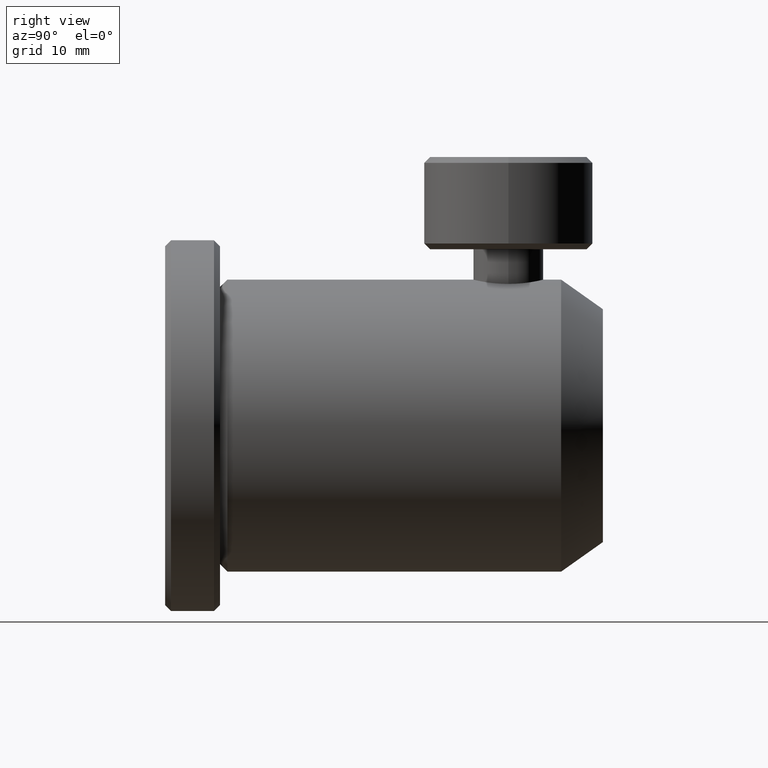
[diagram: clean part render]
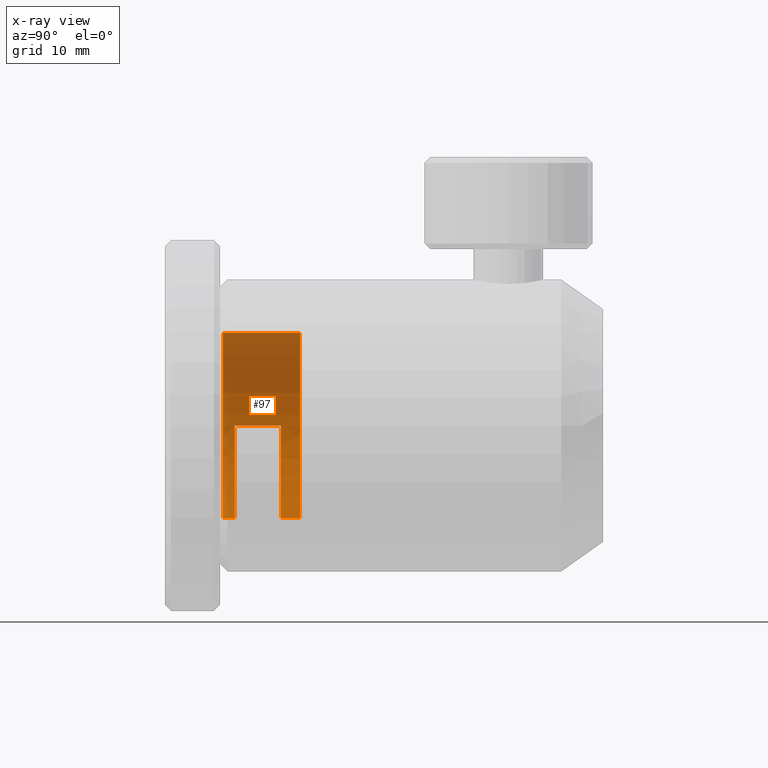
[diagram: x-ray — body ghosted, one internal face saturated and labeled with its STEP entity id]
A machine part, right view, then the same camera in x-ray: the body is ghosted and one INTERNAL B-rep face — a face not visible from any outside direction — is saturated and labeled: STEP entity #97.
In plain terms, the highlighted cylindrical surface (partial cylindrical patch) has radius 7.9375 mm, axis along (-0, 1, -0).
Its self-contained STEP definition (entity closure, byte-faithful):
#1 = CARTESIAN_POINT ( 'NONE',  ( -17.81591825903160100, -13.57886015381163600, 3.908492188329974600 ) ) ;
#21 = AXIS2_PLACEMENT_3D ( 'NONE', #3245, #3000, #464 ) ;
#97 = ADVANCED_FACE ( 'NONE', ( #587 ), #497, .F. ) ;
#137 = ORIENTED_EDGE ( 'NONE', *, *, #2981, .F. ) ;
#194 = VECTOR ( 'NONE', #2451, 1000.000000000000000 ) ;
#238 = CARTESIAN_POINT ( 'NONE',  ( -24.71440178323126700, -13.57883632940748700, 10.80696398883896100 ) ) ;
#244 = EDGE_CURVE ( 'NONE', #606, #2000, #2009, .T. ) ;
#246 = CARTESIAN_POINT ( 'NONE',  ( -23.57251977138291100, -9.641813358169830700, 7.702046776336532100 ) ) ;
#281 = CARTESIAN_POINT ( 'NONE',  ( -16.77690416192938400, -7.990831564526651200, 3.908500000000066300 ) ) ;
#285 = CARTESIAN_POINT ( 'NONE',  ( -18.36051706045270000, -9.641795917809309600, 4.016546295019217900 ) ) ;
#356 = ORIENTED_EDGE ( 'NONE', *, *, #2775, .F. ) ;
#367 = DIRECTION ( 'NONE',  ( -0.0000000000000000000, 1.000000000000000000, -0.0000000000000000000 ) ) ;
#464 = DIRECTION ( 'NONE',  ( 0.0000000000000000000, 0.0000000000000000000, 1.000000000000000000 ) ) ;
#483 = DIRECTION ( 'NONE',  ( 0.0000000000000000000, 0.0000000000000000000, 1.000000000000000000 ) ) ;
#494 = CARTESIAN_POINT ( 'NONE',  ( -24.50780756226441400, -13.57884049867822000, 9.768356392796640400 ) ) ;
#497 = CYLINDRICAL_SURFACE ( 'NONE', #3060, 7.937499999999932500 ) ;
#527 = CARTESIAN_POINT ( 'NONE',  ( -20.94571358167017300, -9.641801223342280700, 5.011930882989041400 ) ) ;
#538 = CARTESIAN_POINT ( 'NONE',  ( -16.77690465237445100, -9.641799069448357100, 3.908500000000082200 ) ) ;
#587 = FACE_OUTER_BOUND ( 'NONE', #706, .T. ) ;
#590 = B_SPLINE_CURVE_WITH_KNOTS ( 'NONE', 3,
 ( #538, #3057, #285, #3288, #527, #1409, #2496, #1927, #246, #803, #2200, #2751, #3308, #3278 ),
 .UNSPECIFIED., .F., .F.,
 ( 4, 2, 2, 2, 2, 2, 4 ),
 ( 0.5002174648131161300, 0.6251630986098371000, 0.7501087324065580700, 0.8125815493049185500, 0.8750543662032790300, 0.9375271831016395200, 1.000000000000000000 ),
 .UNSPECIFIED. ) ;
#599 = CARTESIAN_POINT ( 'NONE',  ( -16.77690416192938400, 10.85402768764679000, 3.908500000000066300 ) ) ;
#606 = VERTEX_POINT ( 'NONE', #281 ) ;
#671 = VECTOR ( 'NONE', #367, 1000.000000000000000 ) ;
#706 = EDGE_LOOP ( 'NONE', ( #899, #1121, #356, #137, #2164, #2559, #1030, #1658 ) ) ;
#802 = CARTESIAN_POINT ( 'NONE',  ( -24.71440416190851900, -13.57883156452665200, 11.84598182827097200 ) ) ;
#803 = CARTESIAN_POINT ( 'NONE',  ( -24.11097407575043800, -9.641817909465073600, 8.753403349700374000 ) ) ;
#830 = CARTESIAN_POINT ( 'NONE',  ( -21.65486010448266900, -13.57885538893081900, 5.498631395765011500 ) ) ;
#899 = ORIENTED_EDGE ( 'NONE', *, *, #1943, .F. ) ;
#975 = CARTESIAN_POINT ( 'NONE',  ( -24.71440416190851900, -13.57883156452665200, 11.84598182827097200 ) ) ;
#1005 = DIRECTION ( 'NONE',  ( -0.0000000000000000000, 1.000000000000000000, -0.0000000000000000000 ) ) ;
#1030 = ORIENTED_EDGE ( 'NONE', *, *, #244, .T. ) ;
#1035 = VERTEX_POINT ( 'NONE', #2126 ) ;
#1102 = CARTESIAN_POINT ( 'NONE',  ( -16.77690416192945500, -13.57886015376989700, 3.908496094165017100 ) ) ;
#1121 = ORIENTED_EDGE ( 'NONE', *, *, #2148, .T. ) ;
#1234 = LINE ( 'NONE', #3435, #2349 ) ;
#1301 = CIRCLE ( 'NONE', #3429, 7.937499999999932500 ) ;
#1370 = VERTEX_POINT ( 'NONE', #2916 ) ;
#1409 = CARTESIAN_POINT ( 'NONE',  ( -22.15963035927529400, -9.641805773461667800, 5.989373879650159400 ) ) ;
#1514 = LINE ( 'NONE', #599, #671 ) ;
#1658 = ORIENTED_EDGE ( 'NONE', *, *, #3050, .F. ) ;
#1672 = CARTESIAN_POINT ( 'NONE',  ( -16.77690416192938400, 10.85402768764679000, 3.908500000000066300 ) ) ;
#1703 = CARTESIAN_POINT ( 'NONE',  ( -24.71440416190851500, -11.61033156452665300, 11.84598182827097200 ) ) ;
#1704 = CARTESIAN_POINT ( 'NONE',  ( -16.77690416192938400, -14.59483156452664700, 19.78349999999993300 ) ) ;
#1705 = EDGE_CURVE ( 'NONE', #1035, #1370, #590, .T. ) ;
#1733 = B_SPLINE_CURVE_WITH_KNOTS ( 'NONE', 3,
 ( #802, #238, #494, #3270, #2456, #830, #1937, #3546, #1, #2182 ),
 .UNSPECIFIED., .F., .F.,
 ( 4, 2, 2, 2, 4 ),
 ( 0.0000000000000000000, 0.1250000001448587900, 0.2500000002897175800, 0.3750000004345763700, 0.5000000005794351700 ),
 .UNSPECIFIED. ) ;
#1757 = VERTEX_POINT ( 'NONE', #1102 ) ;
#1790 = VERTEX_POINT ( 'NONE', #3069 ) ;
#1810 = VERTEX_POINT ( 'NONE', #1704 ) ;
#1860 = LINE ( 'NONE', #1672, #194 ) ;
#1927 = CARTESIAN_POINT ( 'NONE',  ( -23.25278794946443000, -9.641811272257500700, 7.222695970971402700 ) ) ;
#1937 = CARTESIAN_POINT ( 'NONE',  ( -20.77437216183517400, -13.57885717576112900, 4.910309337041209900 ) ) ;
#1943 = EDGE_CURVE ( 'NONE', #1790, #1810, #1301, .T. ) ;
#1976 = DIRECTION ( 'NONE',  ( 0.0000000000000000000, -1.000000000000000000, 0.0000000000000000000 ) ) ;
#2000 = VERTEX_POINT ( 'NONE', #3072 ) ;
#2009 = CIRCLE ( 'NONE', #21, 7.937499999999932500 ) ;
#2106 = LINE ( 'NONE', #1703, #2264 ) ;
#2126 = CARTESIAN_POINT ( 'NONE',  ( -16.77690465237445100, -9.641799069448357100, 3.908500000000082200 ) ) ;
#2148 = EDGE_CURVE ( 'NONE', #1790, #1757, #1514, .T. ) ;
#2160 = DIRECTION ( 'NONE',  ( -0.0000000000000000000, 1.000000000000000000, -0.0000000000000000000 ) ) ;
#2164 = ORIENTED_EDGE ( 'NONE', *, *, #1705, .F. ) ;
#2182 = CARTESIAN_POINT ( 'NONE',  ( -16.77690416192945500, -13.57886015376989700, 3.908496094165017100 ) ) ;
#2200 = CARTESIAN_POINT ( 'NONE',  ( -24.32958128532486300, -9.641820374847981200, 9.325472279408856500 ) ) ;
#2252 = VERTEX_POINT ( 'NONE', #975 ) ;
#2264 = VECTOR ( 'NONE', #1976, 1000.000000000000000 ) ;
#2349 = VECTOR ( 'NONE', #3383, 1000.000000000000000 ) ;
#2451 = DIRECTION ( 'NONE',  ( -0.0000000000000000000, 1.000000000000000000, -0.0000000000000000000 ) ) ;
#2456 = CARTESIAN_POINT ( 'NONE',  ( -23.12425093719027200, -13.57885062404999000, 6.968018864512801600 ) ) ;
#2496 = CARTESIAN_POINT ( 'NONE',  ( -22.54630547731287400, -9.641807479903418400, 6.366399506067258700 ) ) ;
#2559 = ORIENTED_EDGE ( 'NONE', *, *, #3347, .T. ) ;
#2751 = CARTESIAN_POINT ( 'NONE',  ( -24.63137267307513800, -9.641825685084381100, 10.54089006473567200 ) ) ;
#2775 = EDGE_CURVE ( 'NONE', #2252, #1757, #1733, .T. ) ;
#2916 = CARTESIAN_POINT ( 'NONE',  ( -24.71440416190851500, -9.641831564526649200, 11.84598182827097400 ) ) ;
#2981 = EDGE_CURVE ( 'NONE', #1370, #2252, #2106, .T. ) ;
#3000 = DIRECTION ( 'NONE',  ( -0.0000000000000000000, 1.000000000000000000, -0.0000000000000000000 ) ) ;
#3050 = EDGE_CURVE ( 'NONE', #1810, #2000, #1234, .T. ) ;
#3057 = CARTESIAN_POINT ( 'NONE',  ( -17.53150731147431100, -9.641795161219860700, 3.908500048977658500 ) ) ;
#3060 = AXIS2_PLACEMENT_3D ( 'NONE', #3204, #1005, #3194 ) ;
#3069 = CARTESIAN_POINT ( 'NONE',  ( -16.77690416192938400, -14.59483156452664700, 3.908500000000066300 ) ) ;
#3072 = CARTESIAN_POINT ( 'NONE',  ( -16.77690416192938400, -7.990831564526651200, 19.78349999999993300 ) ) ;
#3194 = DIRECTION ( 'NONE',  ( 0.0000000000000000000, 0.0000000000000000000, 1.000000000000000000 ) ) ;
#3204 = CARTESIAN_POINT ( 'NONE',  ( -16.77690416192938400, 10.85402768764679000, 11.84600000000000000 ) ) ;
#3245 = CARTESIAN_POINT ( 'NONE',  ( -16.77690416192938400, -7.990831564526651200, 11.84600000000000000 ) ) ;
#3270 = CARTESIAN_POINT ( 'NONE',  ( -23.71257569279444200, -13.57884764599946500, 7.848506151970828300 ) ) ;
#3278 = CARTESIAN_POINT ( 'NONE',  ( -24.71440416190851500, -9.641831564526649200, 11.84598182827097400 ) ) ;
#3288 = CARTESIAN_POINT ( 'NONE',  ( -20.06749764501243400, -9.641798948870517800, 4.567251640193409100 ) ) ;
#3308 = CARTESIAN_POINT ( 'NONE',  ( -24.71440264701077200, -9.641828529937869900, 11.18426708954812200 ) ) ;
#3347 = EDGE_CURVE ( 'NONE', #1035, #606, #1860, .T. ) ;
#3383 = DIRECTION ( 'NONE',  ( -0.0000000000000000000, 1.000000000000000000, -0.0000000000000000000 ) ) ;
#3429 = AXIS2_PLACEMENT_3D ( 'NONE', #3521, #2160, #483 ) ;
#3435 = CARTESIAN_POINT ( 'NONE',  ( -16.77690416192938400, 10.85402768764679000, 19.78349999999993300 ) ) ;
#3521 = CARTESIAN_POINT ( 'NONE',  ( -16.77690416192938400, -14.59483156452664700, 11.84600000000000000 ) ) ;
#3546 = CARTESIAN_POINT ( 'NONE',  ( -18.85452355790969700, -13.57885955820154000, 4.115083294923447700 ) ) ;